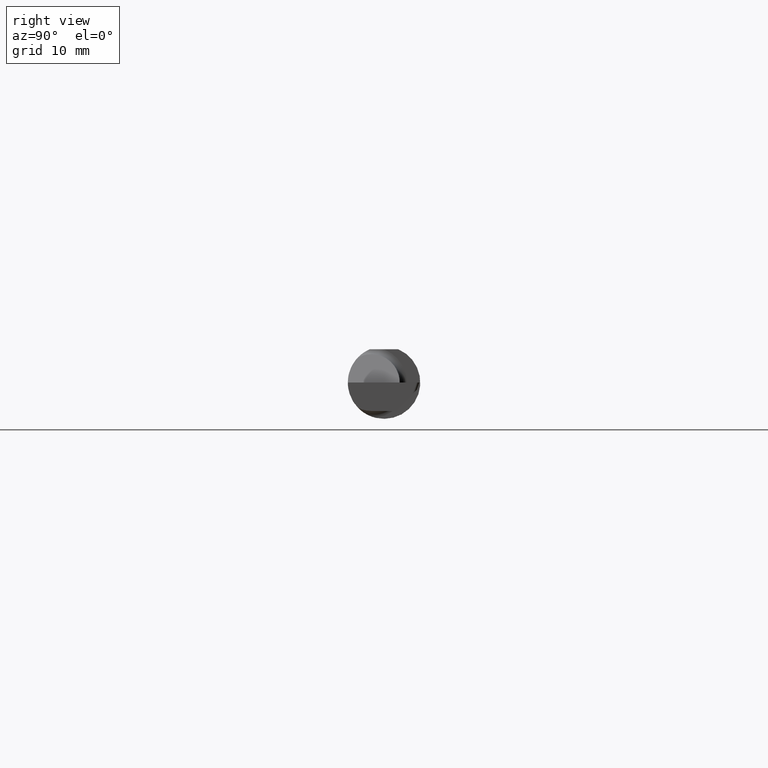
[diagram: clean part render]
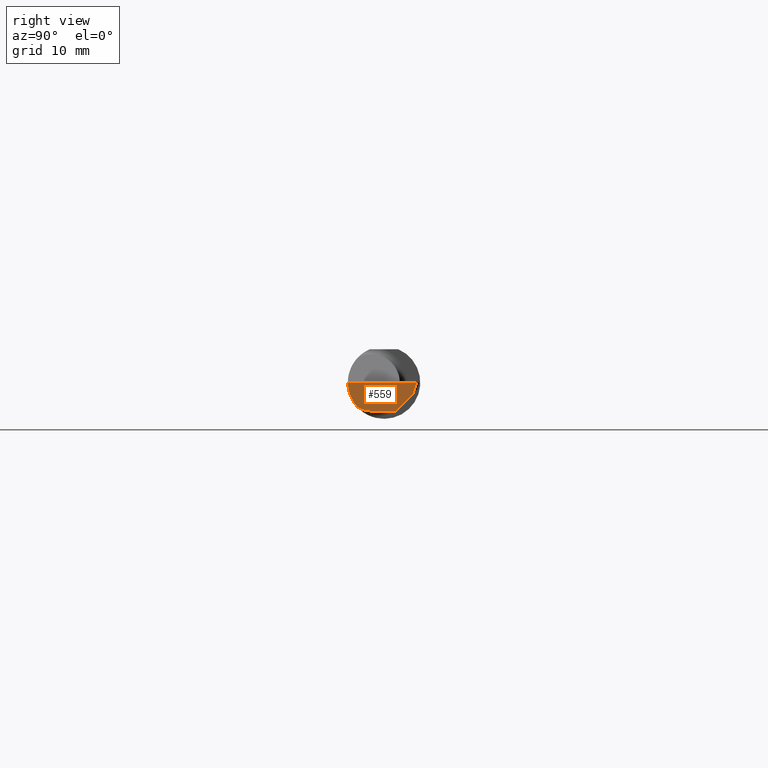
[diagram: same view with one face highlighted and labeled with its STEP entity id]
A machine part, right view. The second image highlights one B-rep face of the part: STEP entity #559.
In plain terms, the highlighted planar face has unit normal (-0.9992, 0.0174, 0.0349).
Its self-contained STEP definition (entity closure, byte-faithful):
#13 = VERTEX_POINT ( 'NONE', #570 ) ;
#32 = DIRECTION ( 'NONE',  ( -0.01745240643727528213, -0.9998476951563914916, 0.000000000000000000 ) ) ;
#45 = EDGE_CURVE ( 'NONE', #511, #662, #504, .T. ) ;
#53 = DIRECTION ( 'NONE',  ( -0.01745240643727527866, -0.9998476951563912696, 0.000000000000000000 ) ) ;
#58 = LINE ( 'NONE', #640, #516 ) ;
#85 = CARTESIAN_POINT ( 'NONE',  ( 2.494705994581233099, -0.1250000000000000278, -0.03254916765648430133 ) ) ;
#88 = LINE ( 'NONE', #638, #159 ) ;
#95 = VECTOR ( 'NONE', #567, 39.37007874015748854 ) ;
#106 = DIRECTION ( 'NONE',  ( -0.9992386149554827179, 0.01744177490282193196, 0.03489949670250104552 ) ) ;
#117 = ORIENTED_EDGE ( 'NONE', *, *, #283, .F. ) ;
#153 = CARTESIAN_POINT ( 'NONE',  ( 2.493862026000344123, -0.1128945894460738203, -0.06276352435079129988 ) ) ;
#159 = VECTOR ( 'NONE', #32, 39.37007874015747433 ) ;
#207 = CARTESIAN_POINT ( 'NONE',  ( 2.493431982762754462, -0.09042045454545420691, -0.08630840862739533326 ) ) ;
#209 =( BOUNDED_CURVE ( )  B_SPLINE_CURVE ( 3, ( #626, #153, #85, #300 ),
 .UNSPECIFIED., .F., .T. ) 
 B_SPLINE_CURVE_WITH_KNOTS ( ( 4, 4 ),
 ( 0.3451966888490691776, 1.107331509589587926 ),
 .UNSPECIFIED. ) 
 CURVE ( )  GEOMETRIC_REPRESENTATION_ITEM ( )  RATIONAL_B_SPLINE_CURVE ( ( 1.000000000000000000, 0.9521787881681380572, 0.9521787881681380572, 1.000000000000000000 ) ) 
 REPRESENTATION_ITEM ( '' )  );
#215 = PLANE ( 'NONE',  #526 ) ;
#217 = EDGE_CURVE ( 'NONE', #380, #13, #350, .T. ) ;
#234 = CARTESIAN_POINT ( 'NONE',  ( 2.499991849855255133, 0.1126983510377570219, 0.000000000000000000 ) ) ;
#242 = ORIENTED_EDGE ( 'NONE', *, *, #351, .T. ) ;
#266 = CARTESIAN_POINT ( 'NONE',  ( 2.498428636891867782, 0.09954970949977201555, -0.03818642778127616377 ) ) ;
#283 = EDGE_CURVE ( 'NONE', #687, #13, #58, .T. ) ;
#285 = ORIENTED_EDGE ( 'NONE', *, *, #397, .F. ) ;
#300 = CARTESIAN_POINT ( 'NONE',  ( 2.495842809704562626, -0.1250000000000000000, 0.000000000000000000 ) ) ;
#314 = VECTOR ( 'NONE', #515, 39.37007874015748143 ) ;
#322 = DIRECTION ( 'NONE',  ( 0.03490480639812536257, 0.000000000000000000, 0.9993906415863165194 ) ) ;
#350 =( BOUNDED_CURVE ( )  B_SPLINE_CURVE ( 3, ( #587, #529, #594, #476 ),
 .UNSPECIFIED., .F., .T. ) 
 B_SPLINE_CURVE_WITH_KNOTS ( ( 4, 4 ),
 ( 6.253187659403606879, 6.746650124384893310 ),
 .UNSPECIFIED. ) 
 CURVE ( )  GEOMETRIC_REPRESENTATION_ITEM ( )  RATIONAL_B_SPLINE_CURVE ( ( 1.000000000000000000, 0.9798106333074692031, 0.9798106333074692031, 1.000000000000000000 ) ) 
 REPRESENTATION_ITEM ( '' )  );
#351 = EDGE_CURVE ( 'NONE', #662, #542, #88, .T. ) ;
#363 = CARTESIAN_POINT ( 'NONE',  ( 2.495842809704562626, -0.1250000000000000000, 0.000000000000000000 ) ) ;
#380 = VERTEX_POINT ( 'NONE', #207 ) ;
#393 = CARTESIAN_POINT ( 'NONE',  ( 2.495295532964209695, 0.03973613728104874454, -0.09800000000000008704 ) ) ;
#395 = ORIENTED_EDGE ( 'NONE', *, *, #410, .F. ) ;
#397 = EDGE_CURVE ( 'NONE', #380, #542, #209, .T. ) ;
#408 = LINE ( 'NONE', #521, #314 ) ;
#410 = EDGE_CURVE ( 'NONE', #511, #687, #408, .T. ) ;
#476 = CARTESIAN_POINT ( 'NONE',  ( 2.493833913251130241, -0.04400000000000017092, -0.09800000000000008704 ) ) ;
#481 = CARTESIAN_POINT ( 'NONE',  ( 2.499998666069249253, 0.1130888516759625262, 0.000000000000000000 ) ) ;
#497 = EDGE_LOOP ( 'NONE', ( #395, #528, #242, #285, #647, #117 ) ) ;
#504 = LINE ( 'NONE', #506, #95 ) ;
#506 = CARTESIAN_POINT ( 'NONE',  ( 2.499996773571325548, 0.1127397658540113118, 0.0001202773598626410973 ) ) ;
#511 = VERTEX_POINT ( 'NONE', #266 ) ;
#515 = DIRECTION ( 'NONE',  ( -0.03701368837992363020, -0.7066222423871550973, -0.7066222423871629799 ) ) ;
#516 = VECTOR ( 'NONE', #53, 39.37007874015748854 ) ;
#521 = CARTESIAN_POINT ( 'NONE',  ( 2.495747786320908546, 0.04837003179481734472, -0.08936610548623138972 ) ) ;
#526 = AXIS2_PLACEMENT_3D ( 'NONE', #481, #106, #322 ) ;
#528 = ORIENTED_EDGE ( 'NONE', *, *, #45, .T. ) ;
#529 = CARTESIAN_POINT ( 'NONE',  ( 2.493412911089820660, -0.07607783494366261723, -0.09402249966297462902 ) ) ;
#542 = VERTEX_POINT ( 'NONE', #363 ) ;
#559 = ADVANCED_FACE ( 'NONE', ( #699 ), #215, .F. ) ;
#567 = DIRECTION ( 'NONE',  ( 0.03867711768362983027, 0.3253245514560478280, 0.9448111011136606230 ) ) ;
#570 = CARTESIAN_POINT ( 'NONE',  ( 2.493833913251130241, -0.04400000000000017092, -0.09800000000000008704 ) ) ;
#587 = CARTESIAN_POINT ( 'NONE',  ( 2.493431982762754462, -0.09042045454545420691, -0.08630840862739533326 ) ) ;
#594 = CARTESIAN_POINT ( 'NONE',  ( 2.493549648562250809, -0.06028551311893198816, -0.09800000000000007316 ) ) ;
#626 = CARTESIAN_POINT ( 'NONE',  ( 2.493431982762754462, -0.09042045454545420691, -0.08630840862739533326 ) ) ;
#638 = CARTESIAN_POINT ( 'NONE',  ( 2.499998666069249253, 0.1130888516759625262, 0.000000000000000000 ) ) ;
#640 = CARTESIAN_POINT ( 'NONE',  ( 2.493888306049834025, -0.04088383864926509181, -0.09800000000000008704 ) ) ;
#647 = ORIENTED_EDGE ( 'NONE', *, *, #217, .T. ) ;
#662 = VERTEX_POINT ( 'NONE', #234 ) ;
#687 = VERTEX_POINT ( 'NONE', #393 ) ;
#699 = FACE_OUTER_BOUND ( 'NONE', #497, .T. ) ;